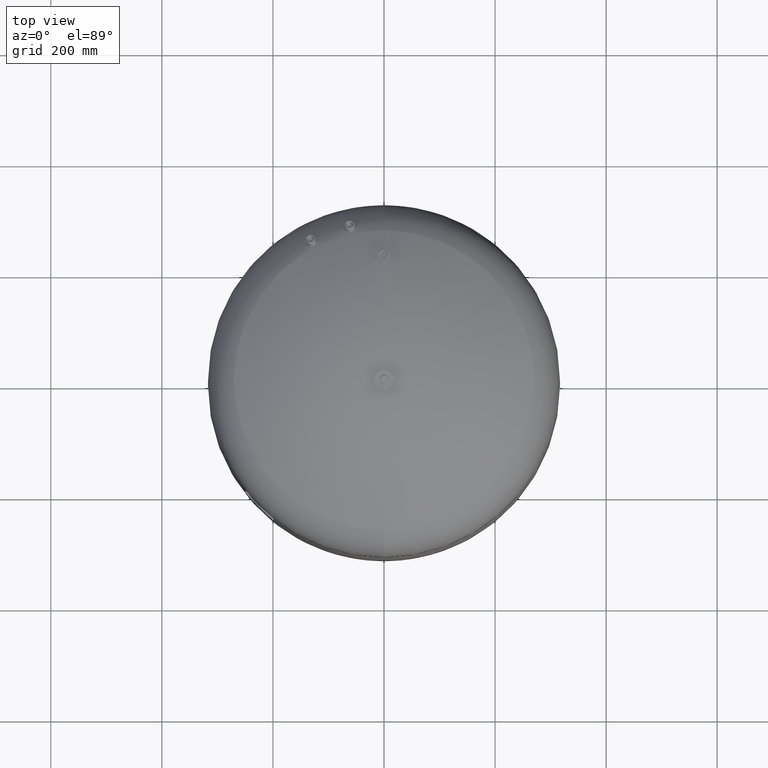
[diagram: clean part render]
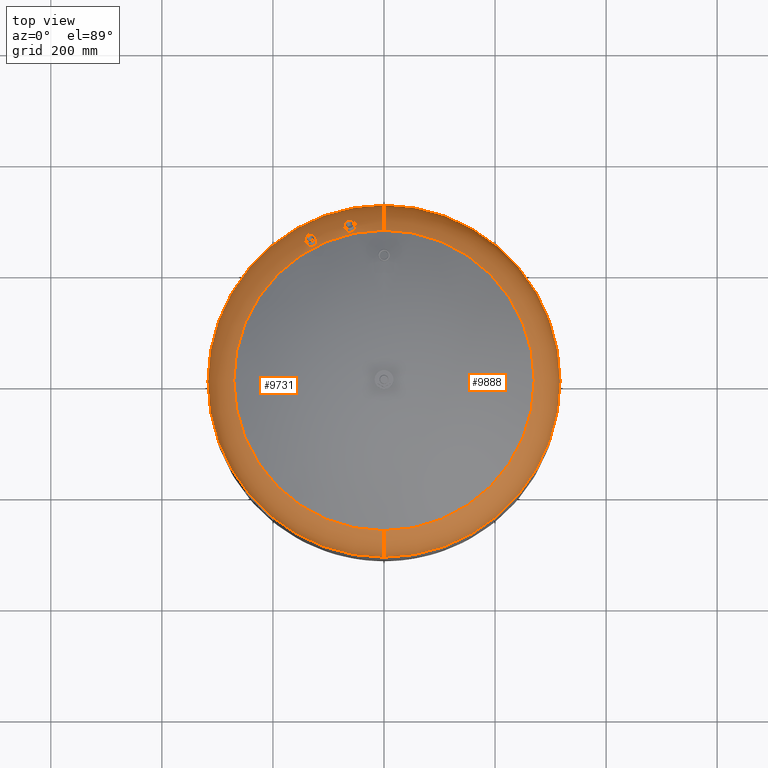
[diagram: same view with one multi-face feature highlighted, each face labeled with its STEP entity id]
A machine part, top view. The highlighted faces form ONE feature: a constant-radius fillet chain: 2 tangent blend faces with common blend radius 99 mm. The faces share edges in the B-rep.
Their STEP definitions:
[1] entity #9731 (Torus):
#9273=CARTESIAN_POINT('',(-128.840872820130980,256.751013910837000,838.975197680877390));
#9274=VERTEX_POINT('',#9273);
#9290=CARTESIAN_POINT('',(-130.509911073430660,241.457206564656790,849.554803462125620));
#9291=VERTEX_POINT('',#9290);
#9298=CARTESIAN_POINT('',(-126.327124967881660,242.672149214953950,850.163665233574080));
#9299=VERTEX_POINT('',#9298);
#9300=CARTESIAN_POINT('',(-130.509911073430660,241.457206564656790,849.554803462125620));
#9301=CARTESIAN_POINT('',(-130.347829069080860,241.470023670923520,849.600496035453030));
#9302=CARTESIAN_POINT('',(-130.185218493291840,241.486762397547010,849.643765149796540));
#9303=CARTESIAN_POINT('',(-129.067940489375730,241.628552679199540,849.923505681807570));
#9304=CARTESIAN_POINT('',(-128.115335255873990,241.883270579223700,850.074607113222780));
#9305=CARTESIAN_POINT('',(-126.904917249702420,242.386919963441390,850.153924694745680));
#9306=CARTESIAN_POINT('',(-126.612934696719140,242.523366087394040,850.163665233574080));
#9307=CARTESIAN_POINT('',(-126.327124967881660,242.672149214953950,850.163665233574080));
#9308=B_SPLINE_CURVE_WITH_KNOTS('',3,(#9300,#9301,#9302,#9303,#9304,#9305,#9306,#9307),.UNSPECIFIED.,.F.,.U.,(4,2,2,4),(54.186803261261318,54.694562524110509,57.668165065733376,58.634815251323765),.UNSPECIFIED.);
#9309=EDGE_CURVE('',#9291,#9299,#9308,.T.);
#9311=CARTESIAN_POINT('',(-126.327124967881690,242.672149214954000,850.163665233574190));
#9312=CARTESIAN_POINT('',(-125.470442318313540,243.118109975098490,850.163665233574080));
#9313=CARTESIAN_POINT('',(-124.676351442076410,243.671356780208410,850.076353810763860));
#9314=CARTESIAN_POINT('',(-123.188376078432680,245.024963319039700,849.710556774520460));
#9315=CARTESIAN_POINT('',(-122.528669496874640,245.836015487352230,849.413712695407300));
#9316=CARTESIAN_POINT('',(-121.444590192281450,247.694171575578420,848.574210842170710));
#9317=CARTESIAN_POINT('',(-121.077562747586700,248.738734458002650,848.011360648118280));
#9318=CARTESIAN_POINT('',(-120.803390364484780,250.766381221251460,846.728520345458950));
#9319=CARTESIAN_POINT('',(-120.881922345354600,251.730427174642780,846.027500606619360));
#9320=CARTESIAN_POINT('',(-121.459121479574960,253.526250728008020,844.519615989956950));
#9321=CARTESIAN_POINT('',(-121.968369350765940,254.334074388721660,843.724146292701680));
#9322=CARTESIAN_POINT('',(-123.370181919408210,255.661369172484880,842.155728169121630));
#9323=CARTESIAN_POINT('',(-124.258364528796990,256.162633181814730,841.397710168555360));
#9324=CARTESIAN_POINT('',(-126.225992316080150,256.752729418491010,840.101130082195940));
#9325=CARTESIAN_POINT('',(-127.273568748568950,256.862485468984180,839.561644526988860));
#9326=CARTESIAN_POINT('',(-128.524825581559530,256.782231542025270,839.086439259639520));
#9327=CARTESIAN_POINT('',(-128.682649727432530,256.768450975520240,839.029426521467600));
#9328=CARTESIAN_POINT('',(-128.840872820130980,256.751013910837000,838.975197680877390));
#9329=B_SPLINE_CURVE_WITH_KNOTS('',3,(#9311,#9312,#9313,#9314,#9315,#9316,#9317,#9318,#9319,#9320,#9321,#9322,#9323,#9324,#9325,#9326,#9327,#9328),.UNSPECIFIED.,.F.,.U.,(4,2,2,2,2,2,2,2,4),(0.0,2.897425659950178,6.133593550374902,9.824934535676666,13.376951263863335,17.066849193133116,20.835792803581985,24.352748855101101,24.858291827381588),.UNSPECIFIED.);
#9330=EDGE_CURVE('',#9299,#9274,#9329,.T.);
#9477=CARTESIAN_POINT('',(-60.346957044014857,281.457532308566900,838.393076219328120));
#9478=VERTEX_POINT('',#9477);
#9494=CARTESIAN_POINT('',(-61.207919145398719,266.841081380609860,850.036596914957040));
#9495=VERTEX_POINT('',#9494);
#9502=CARTESIAN_POINT('',(-59.214458634532747,267.099162102532200,850.163665233574190));
#9503=VERTEX_POINT('',#9502);
#9504=CARTESIAN_POINT('',(-61.207919145398719,266.841081380609860,850.036596914957040));
#9505=CARTESIAN_POINT('',(-60.988059442968797,266.849601155538440,850.064450137007950));
#9506=CARTESIAN_POINT('',(-60.767651598868774,266.864707612120920,850.087791029364100));
#9507=CARTESIAN_POINT('',(-60.100042918366285,266.930497282891110,850.144600504483150));
#9508=CARTESIAN_POINT('',(-59.654623871554307,267.001579818803580,850.163665233574190));
#9509=CARTESIAN_POINT('',(-59.214458634532747,267.099162102532200,850.163665233574190));
#9510=B_SPLINE_CURVE_WITH_KNOTS('',3,(#9504,#9505,#9506,#9507,#9508,#9509),.UNSPECIFIED.,.F.,.U.,(4,2,4),(56.629717400369202,57.296891473211829,58.649448178795552),.UNSPECIFIED.);
#9511=EDGE_CURVE('',#9495,#9503,#9510,.T.);
#9513=CARTESIAN_POINT('',(-59.214458634532761,267.099162102532260,850.163665233574310));
#9514=CARTESIAN_POINT('',(-58.096601139005088,267.346985142886070,850.163665233574190));
#9515=CARTESIAN_POINT('',(-57.026249642883556,267.762968874979660,850.041070088309430));
#9516=CARTESIAN_POINT('',(-55.063531395376557,268.899880769270000,849.551515989032050));
#9517=CARTESIAN_POINT('',(-54.194913239227191,269.617851306161240,849.182507619254690));
#9518=CARTESIAN_POINT('',(-52.767531048061500,271.287440458997650,848.207083239948590));
#9519=CARTESIAN_POINT('',(-52.239123226203787,272.230234915826260,847.600703639109040));
#9520=CARTESIAN_POINT('',(-51.642013263051467,274.162153814242400,846.236121706873630));
#9521=CARTESIAN_POINT('',(-51.573027926992133,275.130854852887580,845.493618875347470));
#9522=CARTESIAN_POINT('',(-51.893691759924579,276.996216485308760,843.938249600972310));
#9523=CARTESIAN_POINT('',(-52.290488072478368,277.873174496368280,843.138869703054870));
#9524=CARTESIAN_POINT('',(-53.516702648289439,279.413853007545240,841.596812889859850));
#9525=CARTESIAN_POINT('',(-54.343830388630884,280.059649421011040,840.869339442343290));
#9526=CARTESIAN_POINT('',(-56.215111641756891,280.966009792227450,839.688604565501460));
#9527=CARTESIAN_POINT('',(-57.213131004380493,281.253615705705440,839.223493858465420));
#9528=CARTESIAN_POINT('',(-58.953780770011406,281.473166969060170,838.665780659953270));
#9529=CARTESIAN_POINT('',(-59.647235746936637,281.496129093900440,838.501566413434940));
#9530=CARTESIAN_POINT('',(-60.346957044014857,281.457532308566900,838.393076219328120));
#9531=B_SPLINE_CURVE_WITH_KNOTS('',3,(#9513,#9514,#9515,#9516,#9517,#9518,#9519,#9520,#9521,#9522,#9523,#9524,#9525,#9526,#9527,#9528,#9529,#9530),.UNSPECIFIED.,.F.,.U.,(4,2,2,2,2,2,2,2,4),(0.0,3.434995597775711,6.961320872720215,10.644678123938185,14.277670970303626,17.990955944882408,21.777853030061451,25.163043194737071,27.300750102973481),.UNSPECIFIED.);
#9532=EDGE_CURVE('',#9503,#9478,#9531,.T.);
#9582=CARTESIAN_POINT('',(-317.000000000000060,4.952455E-014,768.240550627371480));
#9583=VERTEX_POINT('',#9582);
#9607=CARTESIAN_POINT('',(-3.882002E-014,-317.0,768.240550627371140));
#9608=VERTEX_POINT('',#9607);
#9616=CARTESIAN_POINT('',(-1.556097E-014,4.952455E-014,768.240550627371360));
#9617=DIRECTION('',(0.0,0.0,-1.0));
#9618=DIRECTION('',(-1.0,0.0,0.0));
#9619=AXIS2_PLACEMENT_3D('',#9616,#9617,#9618);
#9620=CIRCLE('',#9619,317.000000000000060);
#9621=EDGE_CURVE('',#9608,#9583,#9620,.T.);
#9626=CARTESIAN_POINT('',(0.0,4.952455E-014,768.240550627371360));
#9627=DIRECTION('',(-9.619823E-017,3.061617E-016,-1.0));
#9628=DIRECTION('',(0.0,1.0,0.0));
#9629=AXIS2_PLACEMENT_3D('',#9626,#9627,#9628);
#9630=TOROIDAL_SURFACE('',#9629,218.0,99.0);
#9631=CARTESIAN_POINT('',(1.555323E-030,317.000000000000110,768.240550627371590));
#9632=VERTEX_POINT('',#9631);
#9633=CARTESIAN_POINT('',(8.065826E-015,270.639024390243830,852.086439681297630));
#9634=VERTEX_POINT('',#9633);
#9635=CARTESIAN_POINT('',(0.0,218.000000000000060,768.240550627371480));
#9636=DIRECTION('',(1.0,0.0,0.0));
#9637=DIRECTION('',(0.0,1.0,0.0));
#9638=AXIS2_PLACEMENT_3D('',#9635,#9636,#9637);
#9639=CIRCLE('',#9638,99.0);
#9640=EDGE_CURVE('',#9632,#9634,#9639,.T.);
#9641=ORIENTED_EDGE('',*,*,#9640,.F.);
#9642=CARTESIAN_POINT('',(-1.556097E-014,4.952455E-014,768.240550627371360));
#9643=DIRECTION('',(0.0,0.0,-1.0));
#9644=DIRECTION('',(-1.0,0.0,0.0));
#9645=AXIS2_PLACEMENT_3D('',#9642,#9643,#9644);
#9646=CIRCLE('',#9645,317.000000000000060);
#9647=EDGE_CURVE('',#9583,#9632,#9646,.T.);
#9648=ORIENTED_EDGE('',*,*,#9647,.F.);
#9649=ORIENTED_EDGE('',*,*,#9621,.F.);
#9650=CARTESIAN_POINT('',(-2.507680E-014,-270.639024390243830,852.086439681297410));
#9651=VERTEX_POINT('',#9650);
#9652=CARTESIAN_POINT('',(-2.669642E-014,-217.999999999999940,768.240550627371250));
#9653=DIRECTION('',(-1.0,0.0,0.0));
#9654=DIRECTION('',(0.0,-1.0,0.0));
#9655=AXIS2_PLACEMENT_3D('',#9652,#9653,#9654);
#9656=CIRCLE('',#9655,99.0);
#9657=EDGE_CURVE('',#9608,#9651,#9656,.T.);
#9658=ORIENTED_EDGE('',*,*,#9657,.T.);
#9659=CARTESIAN_POINT('',(-270.639024390243830,2.385415E-014,852.086439681297630));
#9660=VERTEX_POINT('',#9659);
#9661=CARTESIAN_POINT('',(-7.495146E-015,2.385415E-014,852.086439681297520));
#9662=DIRECTION('',(0.0,0.0,-1.0));
#9663=DIRECTION('',(-1.0,0.0,0.0));
#9664=AXIS2_PLACEMENT_3D('',#9661,#9662,#9663);
#9665=CIRCLE('',#9664,270.639024390243830);
#9666=EDGE_CURVE('',#9651,#9660,#9665,.T.);
#9667=ORIENTED_EDGE('',*,*,#9666,.T.);
#9668=CARTESIAN_POINT('',(-7.495146E-015,2.385415E-014,852.086439681297520));
#9669=DIRECTION('',(0.0,0.0,-1.0));
#9670=DIRECTION('',(-1.0,0.0,0.0));
#9671=AXIS2_PLACEMENT_3D('',#9668,#9669,#9670);
#9672=CIRCLE('',#9671,270.639024390243830);
#9673=EDGE_CURVE('',#9660,#9634,#9672,.T.);
#9674=ORIENTED_EDGE('',*,*,#9673,.T.);
#9675=EDGE_LOOP('',(#9641,#9648,#9649,#9658,#9667,#9674));
#9676=FACE_OUTER_BOUND('',#9675,.T.);
#9677=ORIENTED_EDGE('',*,*,#9532,.F.);
#9678=ORIENTED_EDGE('',*,*,#9511,.F.);
#9679=CARTESIAN_POINT('',(-60.346957044014857,281.457532308566900,838.393076219328120));
#9680=CARTESIAN_POINT('',(-60.770686411662481,281.434159300612290,838.327377945548510));
#9681=CARTESIAN_POINT('',(-61.196711479788050,281.388205123924650,838.282102336436760));
#9682=CARTESIAN_POINT('',(-62.728227973951164,281.141432344714990,838.195490954969050));
#9683=CARTESIAN_POINT('',(-63.806873350002050,280.814407969856060,838.278093306182310));
#9684=CARTESIAN_POINT('',(-65.871454371351632,279.863742011020120,838.735989192898610));
#9685=CARTESIAN_POINT('',(-66.823939563482853,279.232274919428510,839.125072425053190));
#9686=CARTESIAN_POINT('',(-68.404050468636271,277.752254650573380,840.148539052417050));
#9687=CARTESIAN_POINT('',(-69.016968777225230,276.916549970906540,840.773692344777150));
#9688=CARTESIAN_POINT('',(-69.834123174038268,275.116372395342130,842.180709486489830));
#9689=CARTESIAN_POINT('',(-70.021109235660077,274.163808541563180,842.954221796439240));
#9690=CARTESIAN_POINT('',(-69.917721105974380,272.269533040468270,844.532463458038360));
#9691=CARTESIAN_POINT('',(-69.623909047717831,271.344807955148380,845.323213677423380));
#9692=CARTESIAN_POINT('',(-68.582830467673531,269.662603879723970,846.807235861387200));
#9693=CARTESIAN_POINT('',(-67.848167719587224,268.921503165732420,847.486101626055870));
#9694=CARTESIAN_POINT('',(-66.056195850657886,267.750050853629200,848.637874670462790));
#9695=CARTESIAN_POINT('',(-65.026789250653238,267.323349235351260,849.104975469649620));
#9696=CARTESIAN_POINT('',(-63.038489096135407,266.885236124290940,849.724587470061690));
#9697=CARTESIAN_POINT('',(-62.127993108583588,266.805427629616190,849.920036107694160));
#9698=CARTESIAN_POINT('',(-61.207919145398719,266.841081380609860,850.036596914957040));
#9699=B_SPLINE_CURVE_WITH_KNOTS('',3,(#9679,#9680,#9681,#9682,#9683,#9684,#9685,#9686,#9687,#9688,#9689,#9690,#9691,#9692,#9693,#9694,#9695,#9696,#9697,#9698),.UNSPECIFIED.,.F.,.U.,(4,2,2,2,2,2,2,2,2,4),(27.300750102973481,28.595278653448172,31.962239401535943,35.551512912075268,39.145637214847170,42.828744148375698,46.545588426619325,50.245267753948575,53.837711923466600,56.629717400369202),.UNSPECIFIED.);
#9700=EDGE_CURVE('',#9478,#9495,#9699,.T.);
#9701=ORIENTED_EDGE('',*,*,#9700,.F.);
#9702=EDGE_LOOP('',(#9677,#9678,#9701));
#9703=FACE_BOUND('',#9702,.T.);
#9704=ORIENTED_EDGE('',*,*,#9330,.F.);
#9705=ORIENTED_EDGE('',*,*,#9309,.F.);
#9706=CARTESIAN_POINT('',(-128.840872820130980,256.751013910837000,838.975197680877390));
#9707=CARTESIAN_POINT('',(-129.646234560721670,256.662258568462050,838.699170757732870));
#9708=CARTESIAN_POINT('',(-130.461968163242350,256.478835540636850,838.495353286373760));
#9709=CARTESIAN_POINT('',(-132.140567932593770,255.907414547028370,838.239444574340270));
#9710=CARTESIAN_POINT('',(-132.988560289328030,255.507034057732170,838.204439657569760));
#9711=CARTESIAN_POINT('',(-134.616972517936260,254.501377301455620,838.338411815327280));
#9712=CARTESIAN_POINT('',(-135.378392531131910,253.894039105854120,838.517535780340840));
#9713=CARTESIAN_POINT('',(-136.837410366262300,252.396969122239510,839.135955222479650));
#9714=CARTESIAN_POINT('',(-137.471704281617010,251.489852219004830,839.616213034892780));
#9715=CARTESIAN_POINT('',(-138.335915088661040,249.611223068453310,840.777438944322280));
#9716=CARTESIAN_POINT('',(-138.565099385294500,248.656097151022410,841.445288393577580));
#9717=CARTESIAN_POINT('',(-138.601046941074060,246.759831457720910,842.903911282457330));
#9718=CARTESIAN_POINT('',(-138.392870477636560,245.835434729018860,843.686051367316740));
#9719=CARTESIAN_POINT('',(-137.532363589083450,244.147412706526580,845.255146620127110));
#9720=CARTESIAN_POINT('',(-136.878207539059820,243.403702054274110,846.027009502877380));
#9721=CARTESIAN_POINT('',(-135.214702395368020,242.237493512240260,847.433890913544590));
#9722=CARTESIAN_POINT('',(-134.227144671373570,241.823177243895400,848.056325350070670));
#9723=CARTESIAN_POINT('',(-132.298181538985260,241.436084289825740,848.971009321467250));
#9724=CARTESIAN_POINT('',(-131.412227080465670,241.385853300025470,849.300431359057480));
#9725=CARTESIAN_POINT('',(-130.509911073430660,241.457206564656790,849.554803462125620));
#9726=B_SPLINE_CURVE_WITH_KNOTS('',3,(#9706,#9707,#9708,#9709,#9710,#9711,#9712,#9713,#9714,#9715,#9716,#9717,#9718,#9719,#9720,#9721,#9722,#9723,#9724,#9725),.UNSPECIFIED.,.F.,.U.,(4,2,2,2,2,2,2,2,2,4),(24.858291827381588,27.431525362104711,30.233344235880011,33.187752015520786,36.773465651954240,40.301307886535859,43.948690390373351,47.678355762043068,51.360090249985880,54.186803261261318),.UNSPECIFIED.);
#9727=EDGE_CURVE('',#9274,#9291,#9726,.T.);
#9728=ORIENTED_EDGE('',*,*,#9727,.F.);
#9729=EDGE_LOOP('',(#9704,#9705,#9728));
#9730=FACE_BOUND('',#9729,.T.);
#9731=ADVANCED_FACE('',(#9676,#9703,#9730),#9630,.T.);
[2] entity #9888 (Torus):
#9599=CARTESIAN_POINT('',(317.0,1.070453E-014,768.240550627371360));
#9600=VERTEX_POINT('',#9599);
#9607=CARTESIAN_POINT('',(-3.882002E-014,-317.0,768.240550627371140));
#9608=VERTEX_POINT('',#9607);
#9609=CARTESIAN_POINT('',(-1.556097E-014,4.952455E-014,768.240550627371360));
#9610=DIRECTION('',(0.0,0.0,-1.0));
#9611=DIRECTION('',(-1.0,0.0,0.0));
#9612=AXIS2_PLACEMENT_3D('',#9609,#9610,#9611);
#9613=CIRCLE('',#9612,317.000000000000060);
#9614=EDGE_CURVE('',#9600,#9608,#9613,.T.);
#9631=CARTESIAN_POINT('',(1.555323E-030,317.000000000000110,768.240550627371590));
#9632=VERTEX_POINT('',#9631);
#9633=CARTESIAN_POINT('',(8.065826E-015,270.639024390243830,852.086439681297630));
#9634=VERTEX_POINT('',#9633);
#9635=CARTESIAN_POINT('',(0.0,218.000000000000060,768.240550627371480));
#9636=DIRECTION('',(1.0,0.0,0.0));
#9637=DIRECTION('',(0.0,1.0,0.0));
#9638=AXIS2_PLACEMENT_3D('',#9635,#9636,#9637);
#9639=CIRCLE('',#9638,99.0);
#9640=EDGE_CURVE('',#9632,#9634,#9639,.T.);
#9650=CARTESIAN_POINT('',(-2.507680E-014,-270.639024390243830,852.086439681297410));
#9651=VERTEX_POINT('',#9650);
#9652=CARTESIAN_POINT('',(-2.669642E-014,-217.999999999999940,768.240550627371250));
#9653=DIRECTION('',(-1.0,0.0,0.0));
#9654=DIRECTION('',(0.0,-1.0,0.0));
#9655=AXIS2_PLACEMENT_3D('',#9652,#9653,#9654);
#9656=CIRCLE('',#9655,99.0);
#9657=EDGE_CURVE('',#9608,#9651,#9656,.T.);
#9785=CARTESIAN_POINT('',(-7.495146E-015,2.385415E-014,852.086439681297520));
#9786=DIRECTION('',(0.0,0.0,-1.0));
#9787=DIRECTION('',(-1.0,0.0,0.0));
#9788=AXIS2_PLACEMENT_3D('',#9785,#9786,#9787);
#9789=CIRCLE('',#9788,270.639024390243830);
#9790=EDGE_CURVE('',#9634,#9651,#9789,.T.);
#9870=CARTESIAN_POINT('',(0.0,4.952455E-014,768.240550627371360));
#9871=DIRECTION('',(-9.619823E-017,3.061617E-016,-1.0));
#9872=DIRECTION('',(0.0,1.0,0.0));
#9873=AXIS2_PLACEMENT_3D('',#9870,#9871,#9872);
#9874=TOROIDAL_SURFACE('',#9873,218.0,99.0);
#9875=ORIENTED_EDGE('',*,*,#9640,.T.);
#9876=ORIENTED_EDGE('',*,*,#9790,.T.);
#9877=ORIENTED_EDGE('',*,*,#9657,.F.);
#9878=ORIENTED_EDGE('',*,*,#9614,.F.);
#9879=CARTESIAN_POINT('',(-1.556097E-014,4.952455E-014,768.240550627371360));
#9880=DIRECTION('',(0.0,0.0,-1.0));
#9881=DIRECTION('',(-1.0,0.0,0.0));
#9882=AXIS2_PLACEMENT_3D('',#9879,#9880,#9881);
#9883=CIRCLE('',#9882,317.000000000000060);
#9884=EDGE_CURVE('',#9632,#9600,#9883,.T.);
#9885=ORIENTED_EDGE('',*,*,#9884,.F.);
#9886=EDGE_LOOP('',(#9875,#9876,#9877,#9878,#9885));
#9887=FACE_OUTER_BOUND('',#9886,.T.);
#9888=ADVANCED_FACE('',(#9887),#9874,.T.);